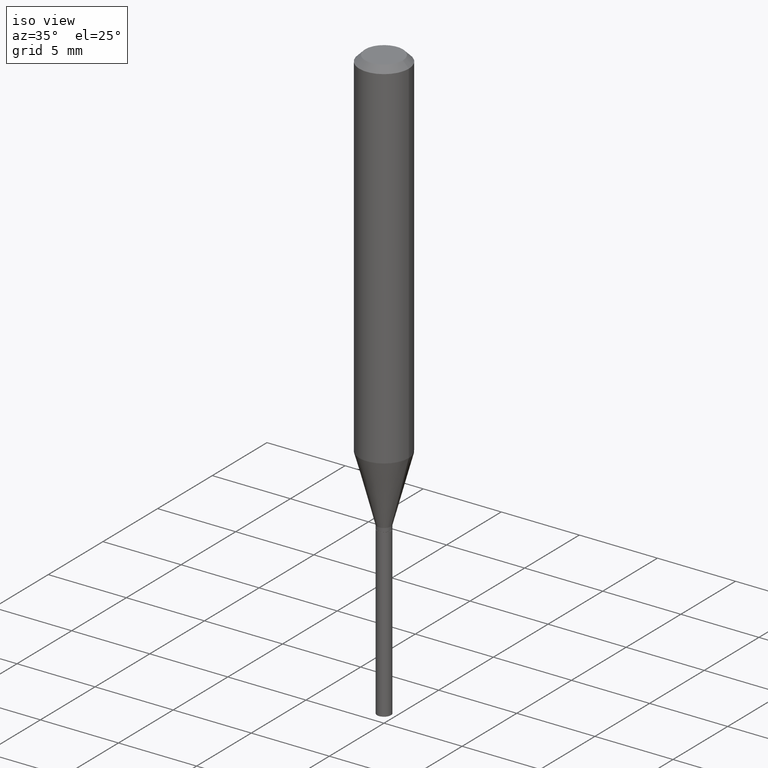
[diagram: clean part render]
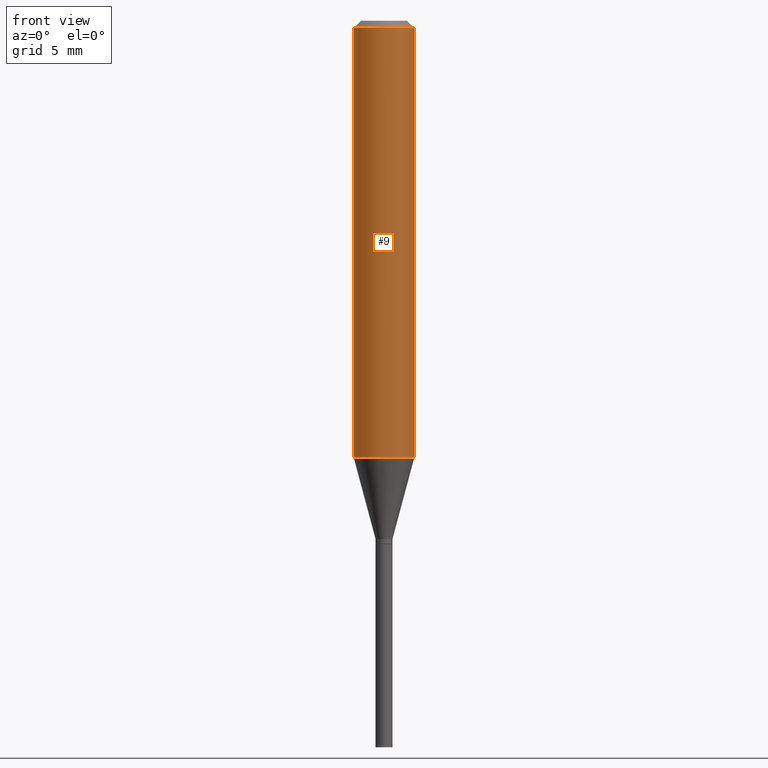
[diagram: tour spotlight — one face highlighted and labeled with its STEP entity id]
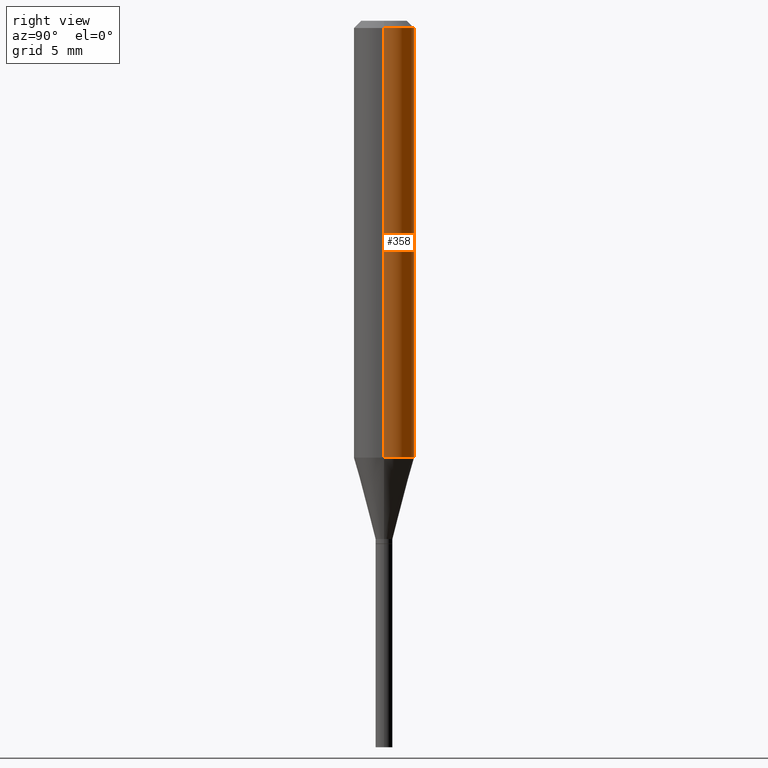
[diagram: tour spotlight — one face highlighted and labeled with its STEP entity id]
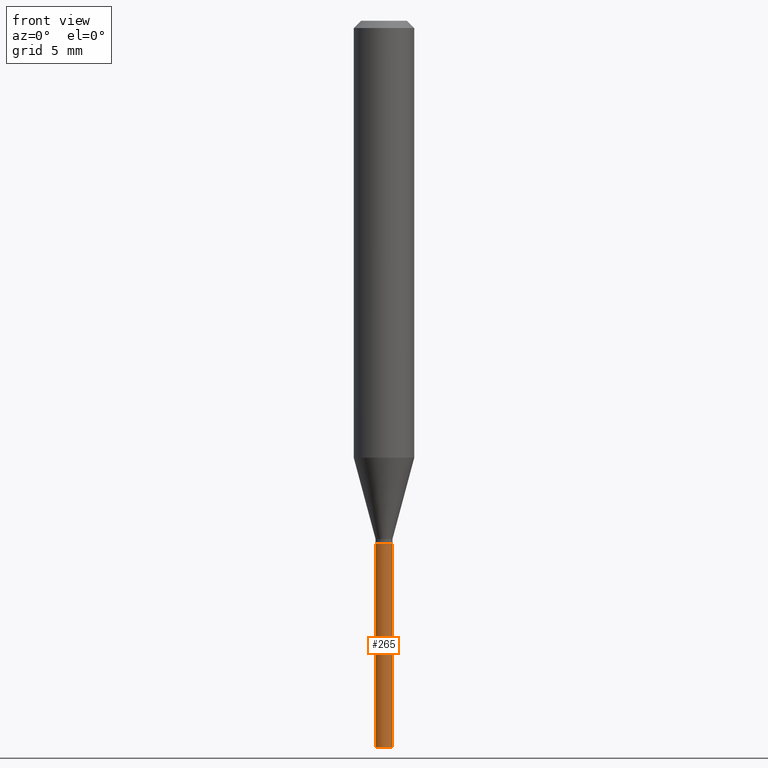
[diagram: tour spotlight — one face highlighted and labeled with its STEP entity id]
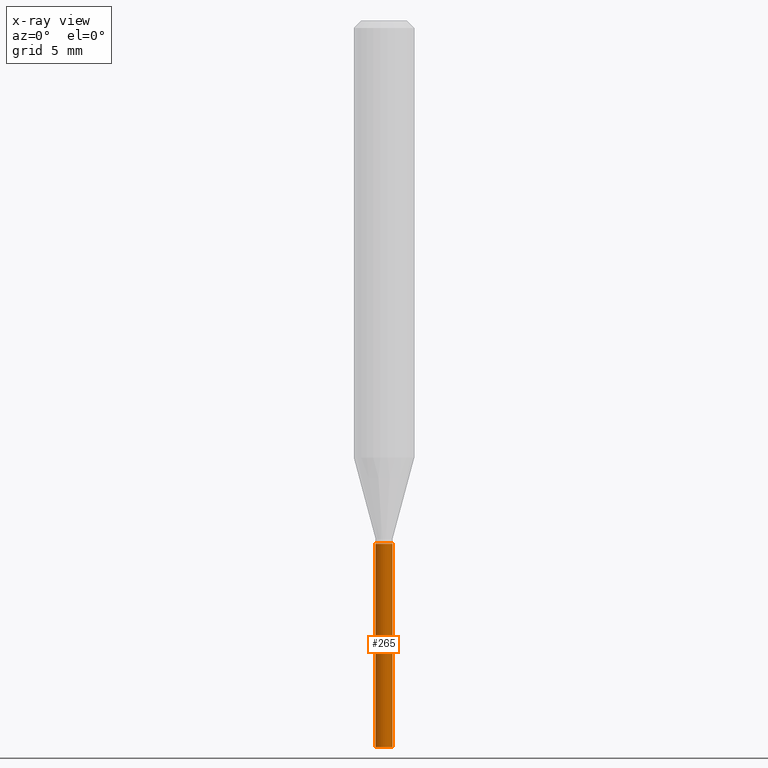
[diagram: x-ray of the same camera — body ghosted, this tour face saturated]
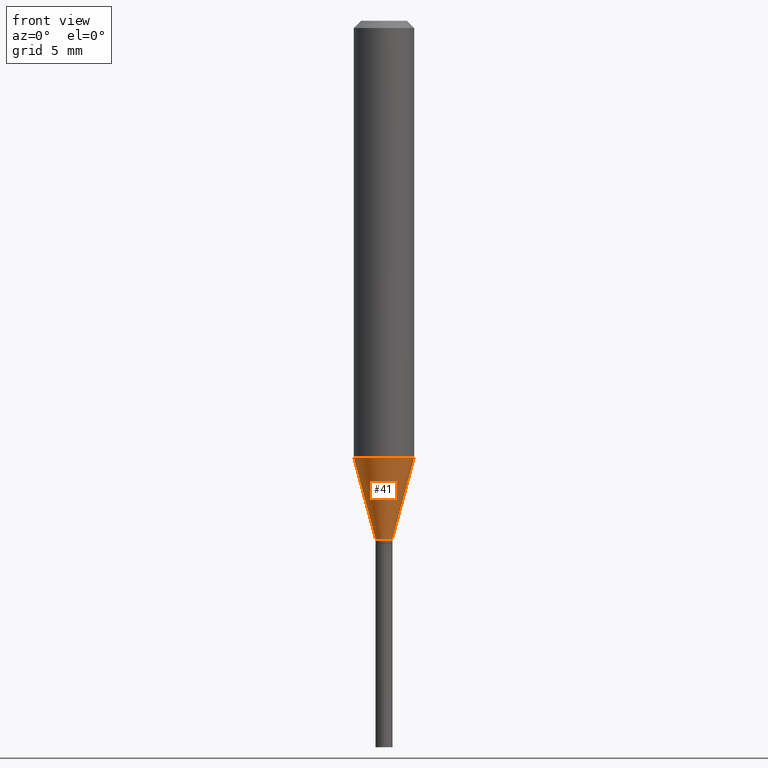
[diagram: tour spotlight — one face highlighted and labeled with its STEP entity id]
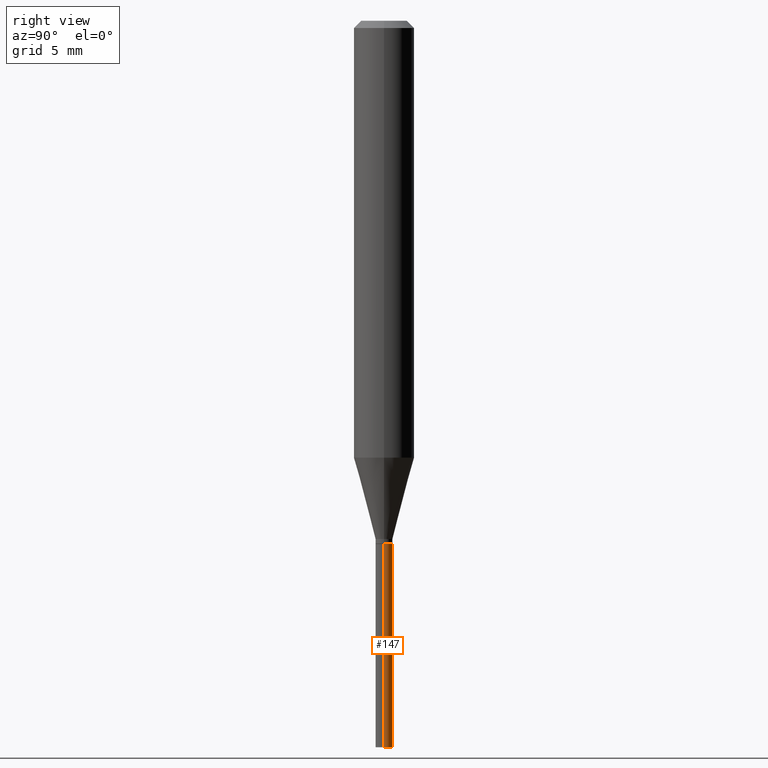
[diagram: tour spotlight — one face highlighted and labeled with its STEP entity id]
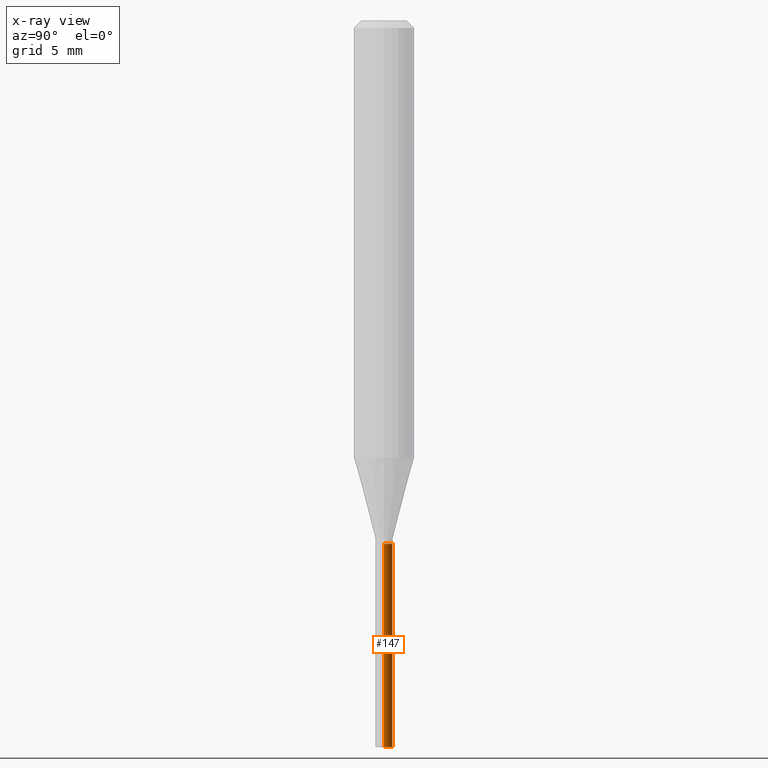
[diagram: x-ray of the same camera — body ghosted, this tour face saturated]
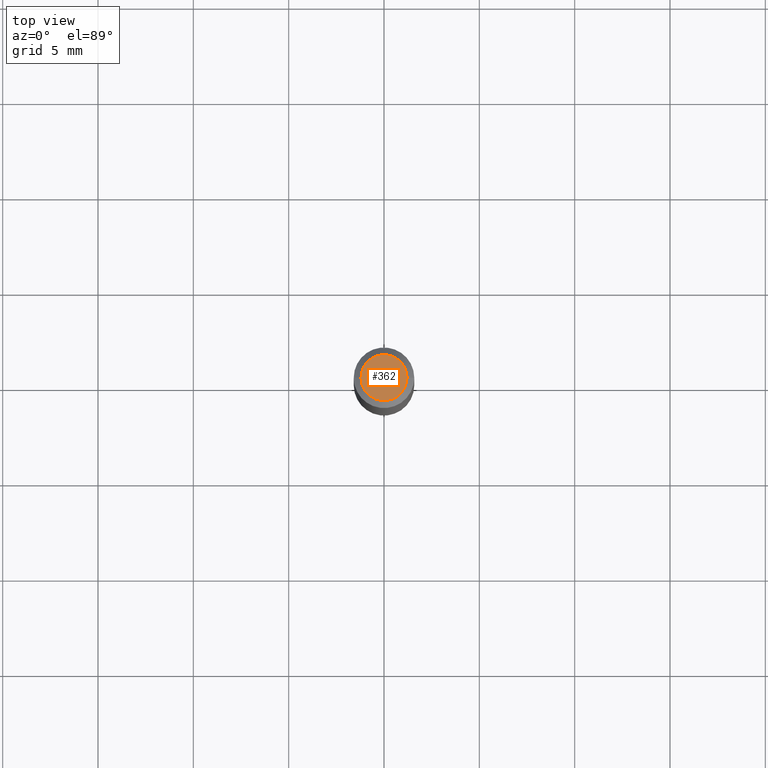
[diagram: tour spotlight — one face highlighted and labeled with its STEP entity id]
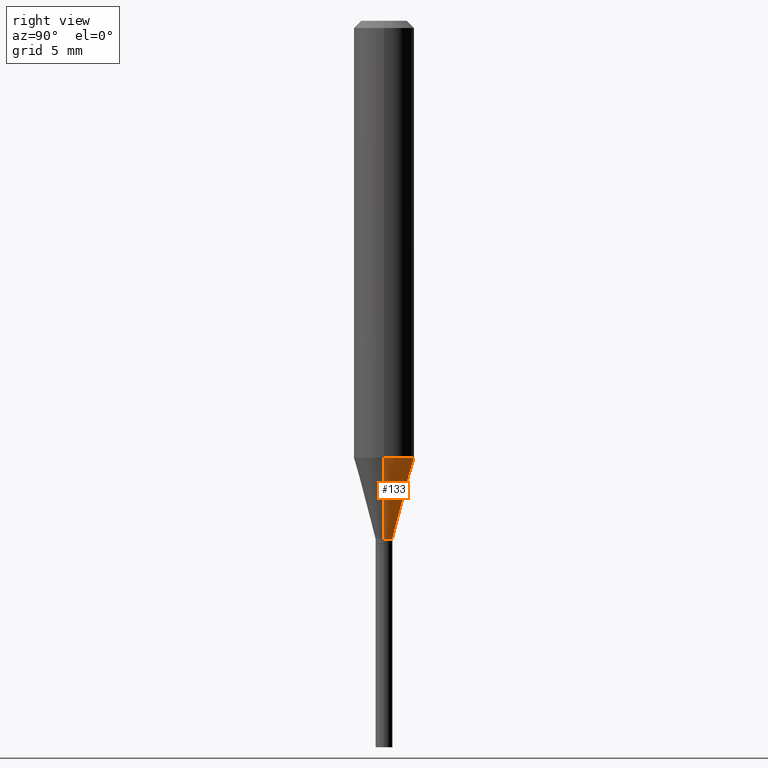
[diagram: tour spotlight — one face highlighted and labeled with its STEP entity id]
A machine part: a face-by-face anatomy tour. The part has 16 B-rep faces; the first image is the clean iso view, then the 7 largest visible faces are spotlighted one at a time (largest first), each with its STEP entity span.

Face 1 — front view, entity #9. In plain terms, the highlighted cylindrical surface (edge-blend (fillet) strip) has radius 1.5875 mm, axis along (-0, 0, 1).
Definition (entity closure, byte-faithful):
#2 = DIRECTION ( 'NONE',  ( 1.000000000000000000, -6.982962677686266711E-15, 0.000000000000000000 ) ) ;
#9 = ADVANCED_FACE ( 'NONE', ( #310 ), #121, .T. ) ;
#32 = DIRECTION ( 'NONE',  ( -2.445468806185136877E-29, 3.491481338843145188E-15, 1.000000000000000000 ) ) ;
#34 = EDGE_CURVE ( 'NONE', #207, #37, #81, .T. ) ;
#37 = VERTEX_POINT ( 'NONE', #432 ) ;
#47 = ORIENTED_EDGE ( 'NONE', *, *, #137, .F. ) ;
#58 = EDGE_CURVE ( 'NONE', #37, #367, #298, .T. ) ;
#59 = CIRCLE ( 'NONE', #321, 0.06250000000000000000 ) ;
#74 = VECTOR ( 'NONE', #32, 39.37007874015748143 ) ;
#81 = CIRCLE ( 'NONE', #347, 0.06250000000000000000 ) ;
#109 = CARTESIAN_POINT ( 'NONE',  ( -0.06250000000000001388, -2.705428463951250195E-15, -0.9020577136594012391 ) ) ;
#121 = CYLINDRICAL_SURFACE ( 'NONE', #410, 0.06250000000000000000 ) ;
#129 = EDGE_LOOP ( 'NONE', ( #47, #407, #171, #198 ) ) ;
#137 = EDGE_CURVE ( 'NONE', #207, #453, #227, .T. ) ;
#171 = ORIENTED_EDGE ( 'NONE', *, *, #58, .T. ) ;
#198 = ORIENTED_EDGE ( 'NONE', *, *, #223, .F. ) ;
#207 = VERTEX_POINT ( 'NONE', #109 ) ;
#223 = EDGE_CURVE ( 'NONE', #453, #367, #59, .T. ) ;
#227 = LINE ( 'NONE', #361, #74 ) ;
#234 = DIRECTION ( 'NONE',  ( -2.445468806185136597E-29, 3.491481338843145583E-15, 1.000000000000000000 ) ) ;
#266 = CARTESIAN_POINT ( 'NONE',  ( 2.205954000132749611E-29, -3.149517673801312812E-15, -0.9020577136594012391 ) ) ;
#298 = LINE ( 'NONE', #396, #456 ) ;
#299 = DIRECTION ( 'NONE',  ( -2.445468806185136877E-29, 3.491481338843145188E-15, 1.000000000000000000 ) ) ;
#310 = FACE_OUTER_BOUND ( 'NONE', #129, .T. ) ;
#321 = AXIS2_PLACEMENT_3D ( 'NONE', #386, #466, #2 ) ;
#347 = AXIS2_PLACEMENT_3D ( 'NONE', #266, #234, #464 ) ;
#361 = CARTESIAN_POINT ( 'NONE',  ( -0.06250000000000000000, 4.440892098500626162E-16, -3.074334431409316114E-30 ) ) ;
#367 = VERTEX_POINT ( 'NONE', #452 ) ;
#375 = DIRECTION ( 'NONE',  ( -2.445468806185136597E-29, 3.491481338843145583E-15, 1.000000000000000000 ) ) ;
#386 = CARTESIAN_POINT ( 'NONE',  ( 3.668203209277705088E-31, -5.237222008264718399E-17, -0.01499999999999999944 ) ) ;
#396 = CARTESIAN_POINT ( 'NONE',  ( 0.06250000000000000000, -4.364351673553916694E-16, 3.047610484872459871E-30 ) ) ;
#407 = ORIENTED_EDGE ( 'NONE', *, *, #34, .T. ) ;
#410 = AXIS2_PLACEMENT_3D ( 'NONE', #449, #375, #414 ) ;
#414 = DIRECTION ( 'NONE',  ( 1.000000000000000000, -6.982962677686266711E-15, 4.876176775795935793E-29 ) ) ;
#432 = CARTESIAN_POINT ( 'NONE',  ( 0.06250000000000001388, -3.585952841156704481E-15, -0.9020577136594012391 ) ) ;
#448 = CARTESIAN_POINT ( 'NONE',  ( -0.06250000000000000000, -1.156855737091917526E-15, -0.01499999999999999944 ) ) ;
#449 = CARTESIAN_POINT ( 'NONE',  ( 0.000000000000000000, 0.000000000000000000, 0.000000000000000000 ) ) ;
#452 = CARTESIAN_POINT ( 'NONE',  ( 0.06250000000000000000, -4.888073874380388472E-16, -0.01499999999999999944 ) ) ;
#453 = VERTEX_POINT ( 'NONE', #448 ) ;
#456 = VECTOR ( 'NONE', #299, 39.37007874015748143 ) ;
#464 = DIRECTION ( 'NONE',  ( 1.000000000000000000, -6.982962677686270655E-15, 0.000000000000000000 ) ) ;
#466 = DIRECTION ( 'NONE',  ( -2.445468806185136597E-29, 3.491481338843145583E-15, 1.000000000000000000 ) ) ;

Face 2 — right view, entity #358. In plain terms, the highlighted cylindrical surface (edge-blend (fillet) strip) has radius 1.5875 mm, axis along (-0, 0, 1).
Definition (entity closure, byte-faithful):
#32 = DIRECTION ( 'NONE',  ( -2.445468806185136877E-29, 3.491481338843145188E-15, 1.000000000000000000 ) ) ;
#37 = VERTEX_POINT ( 'NONE', #432 ) ;
#45 = DIRECTION ( 'NONE',  ( 1.000000000000000000, -6.982962677686266711E-15, 0.000000000000000000 ) ) ;
#48 = CARTESIAN_POINT ( 'NONE',  ( 3.668203209277705088E-31, -5.237222008264718399E-17, -0.01499999999999999944 ) ) ;
#50 = EDGE_LOOP ( 'NONE', ( #297, #61, #342, #244 ) ) ;
#58 = EDGE_CURVE ( 'NONE', #37, #367, #298, .T. ) ;
#61 = ORIENTED_EDGE ( 'NONE', *, *, #137, .T. ) ;
#74 = VECTOR ( 'NONE', #32, 39.37007874015748143 ) ;
#87 = DIRECTION ( 'NONE',  ( 1.000000000000000000, -6.982962677686270655E-15, 0.000000000000000000 ) ) ;
#109 = CARTESIAN_POINT ( 'NONE',  ( -0.06250000000000001388, -2.705428463951250195E-15, -0.9020577136594012391 ) ) ;
#120 = DIRECTION ( 'NONE',  ( -2.445468806185136597E-29, 3.491481338843145583E-15, 1.000000000000000000 ) ) ;
#125 = CIRCLE ( 'NONE', #354, 0.06250000000000000000 ) ;
#135 = DIRECTION ( 'NONE',  ( 1.000000000000000000, -6.982962677686266711E-15, 4.876176775795935793E-29 ) ) ;
#137 = EDGE_CURVE ( 'NONE', #207, #453, #227, .T. ) ;
#148 = AXIS2_PLACEMENT_3D ( 'NONE', #174, #248, #135 ) ;
#174 = CARTESIAN_POINT ( 'NONE',  ( 0.000000000000000000, 0.000000000000000000, 0.000000000000000000 ) ) ;
#181 = CIRCLE ( 'NONE', #196, 0.06250000000000000000 ) ;
#184 = EDGE_CURVE ( 'NONE', #367, #453, #181, .T. ) ;
#190 = EDGE_CURVE ( 'NONE', #37, #207, #125, .T. ) ;
#196 = AXIS2_PLACEMENT_3D ( 'NONE', #48, #120, #45 ) ;
#200 = CARTESIAN_POINT ( 'NONE',  ( 2.205954000132749611E-29, -3.149517673801312812E-15, -0.9020577136594012391 ) ) ;
#207 = VERTEX_POINT ( 'NONE', #109 ) ;
#227 = LINE ( 'NONE', #361, #74 ) ;
#244 = ORIENTED_EDGE ( 'NONE', *, *, #58, .F. ) ;
#246 = FACE_OUTER_BOUND ( 'NONE', #50, .T. ) ;
#248 = DIRECTION ( 'NONE',  ( -2.445468806185136597E-29, 3.491481338843145583E-15, 1.000000000000000000 ) ) ;
#297 = ORIENTED_EDGE ( 'NONE', *, *, #190, .T. ) ;
#298 = LINE ( 'NONE', #396, #456 ) ;
#299 = DIRECTION ( 'NONE',  ( -2.445468806185136877E-29, 3.491481338843145188E-15, 1.000000000000000000 ) ) ;
#342 = ORIENTED_EDGE ( 'NONE', *, *, #184, .F. ) ;
#354 = AXIS2_PLACEMENT_3D ( 'NONE', #200, #443, #87 ) ;
#358 = ADVANCED_FACE ( 'NONE', ( #246 ), #415, .T. ) ;
#361 = CARTESIAN_POINT ( 'NONE',  ( -0.06250000000000000000, 4.440892098500626162E-16, -3.074334431409316114E-30 ) ) ;
#367 = VERTEX_POINT ( 'NONE', #452 ) ;
#396 = CARTESIAN_POINT ( 'NONE',  ( 0.06250000000000000000, -4.364351673553916694E-16, 3.047610484872459871E-30 ) ) ;
#415 = CYLINDRICAL_SURFACE ( 'NONE', #148, 0.06250000000000000000 ) ;
#432 = CARTESIAN_POINT ( 'NONE',  ( 0.06250000000000001388, -3.585952841156704481E-15, -0.9020577136594012391 ) ) ;
#443 = DIRECTION ( 'NONE',  ( -2.445468806185136597E-29, 3.491481338843145583E-15, 1.000000000000000000 ) ) ;
#448 = CARTESIAN_POINT ( 'NONE',  ( -0.06250000000000000000, -1.156855737091917526E-15, -0.01499999999999999944 ) ) ;
#452 = CARTESIAN_POINT ( 'NONE',  ( 0.06250000000000000000, -4.888073874380388472E-16, -0.01499999999999999944 ) ) ;
#453 = VERTEX_POINT ( 'NONE', #448 ) ;
#456 = VECTOR ( 'NONE', #299, 39.37007874015748143 ) ;

Face 3 — front view, entity #265. An x-ray twin of the same camera follows (body ghosted, this face saturated) — the face is partly hidden behind the body. In plain terms, the highlighted cylindrical surface (edge-blend (fillet) strip) has radius 0.4445 mm, axis along (-0, 0, 1).
Definition (entity closure, byte-faithful):
#3 = LINE ( 'NONE', #144, #62 ) ;
#8 = ORIENTED_EDGE ( 'NONE', *, *, #425, .F. ) ;
#30 = DIRECTION ( 'NONE',  ( -2.445468806185136877E-29, 3.491481338843145188E-15, 1.000000000000000000 ) ) ;
#38 = VECTOR ( 'NONE', #259, 39.37007874015748143 ) ;
#40 = ORIENTED_EDGE ( 'NONE', *, *, #64, .T. ) ;
#62 = VECTOR ( 'NONE', #30, 39.37007874015748143 ) ;
#64 = EDGE_CURVE ( 'NONE', #313, #95, #3, .T. ) ;
#75 = CARTESIAN_POINT ( 'NONE',  ( -0.01750000000000000167, -4.379665948349641030E-15, -1.080000000000000293 ) ) ;
#76 = CIRCLE ( 'NONE', #455, 0.01750000000000000167 ) ;
#77 = LINE ( 'NONE', #79, #38 ) ;
#79 = CARTESIAN_POINT ( 'NONE',  ( -0.01750000000000000167, 1.243449787580175444E-16, -8.608136407946085539E-31 ) ) ;
#95 = VERTEX_POINT ( 'NONE', #294 ) ;
#97 = EDGE_CURVE ( 'NONE', #127, #235, #77, .T. ) ;
#127 = VERTEX_POINT ( 'NONE', #185 ) ;
#131 = DIRECTION ( 'NONE',  ( -2.445468806185136597E-29, 3.491481338843145583E-15, 1.000000000000000000 ) ) ;
#143 = CYLINDRICAL_SURFACE ( 'NONE', #329, 0.01750000000000000167 ) ;
#144 = CARTESIAN_POINT ( 'NONE',  ( 0.01750000000000000167, -1.222018468595096625E-16, 8.533309357642889039E-31 ) ) ;
#156 = DIRECTION ( 'NONE',  ( -2.445468806185136597E-29, 3.491481338843145583E-15, 1.000000000000000000 ) ) ;
#185 = CARTESIAN_POINT ( 'NONE',  ( -0.01750000000000000167, -4.379665948349641030E-15, -1.500000000000000222 ) ) ;
#202 = DIRECTION ( 'NONE',  ( 1.000000000000000000, -6.982962677686265922E-15, 4.876176775795936353E-29 ) ) ;
#209 = DIRECTION ( 'NONE',  ( -2.445468806185136597E-29, 3.491481338843145583E-15, 1.000000000000000000 ) ) ;
#235 = VERTEX_POINT ( 'NONE', #75 ) ;
#259 = DIRECTION ( 'NONE',  ( -2.445468806185136877E-29, 3.491481338843145188E-15, 1.000000000000000000 ) ) ;
#265 = ADVANCED_FACE ( 'NONE', ( #463 ), #143, .T. ) ;
#275 = CIRCLE ( 'NONE', #348, 0.01750000000000000167 ) ;
#276 = ORIENTED_EDGE ( 'NONE', *, *, #97, .F. ) ;
#277 = CARTESIAN_POINT ( 'NONE',  ( 2.641106310679947838E-29, -3.770799845950597592E-15, -1.080000000000000293 ) ) ;
#284 = CARTESIAN_POINT ( 'NONE',  ( 3.668203209277704895E-29, -5.237222008264718177E-15, -1.500000000000000222 ) ) ;
#294 = CARTESIAN_POINT ( 'NONE',  ( 0.01750000000000000167, -3.893001692810107575E-15, -1.080000000000000293 ) ) ;
#313 = VERTEX_POINT ( 'NONE', #340 ) ;
#329 = AXIS2_PLACEMENT_3D ( 'NONE', #365, #156, #202 ) ;
#333 = EDGE_LOOP ( 'NONE', ( #276, #409, #40, #8 ) ) ;
#340 = CARTESIAN_POINT ( 'NONE',  ( 0.01750000000000000167, -5.359423855124228160E-15, -1.500000000000000222 ) ) ;
#348 = AXIS2_PLACEMENT_3D ( 'NONE', #284, #131, #379 ) ;
#365 = CARTESIAN_POINT ( 'NONE',  ( 0.000000000000000000, 0.000000000000000000, 0.000000000000000000 ) ) ;
#379 = DIRECTION ( 'NONE',  ( 1.000000000000000000, -6.982962677686248567E-15, 0.000000000000000000 ) ) ;
#389 = EDGE_CURVE ( 'NONE', #127, #313, #275, .T. ) ;
#409 = ORIENTED_EDGE ( 'NONE', *, *, #389, .T. ) ;
#416 = DIRECTION ( 'NONE',  ( 1.000000000000000000, -6.982962677686276966E-15, 0.000000000000000000 ) ) ;
#425 = EDGE_CURVE ( 'NONE', #235, #95, #76, .T. ) ;
#455 = AXIS2_PLACEMENT_3D ( 'NONE', #277, #209, #416 ) ;
#463 = FACE_OUTER_BOUND ( 'NONE', #333, .T. ) ;

Face 4 — front view, entity #41. In plain terms, the highlighted conical surface has half-angle 15 deg.
Definition (entity closure, byte-faithful):
#16 = VERTEX_POINT ( 'NONE', #166 ) ;
#34 = EDGE_CURVE ( 'NONE', #207, #37, #81, .T. ) ;
#37 = VERTEX_POINT ( 'NONE', #432 ) ;
#39 = DIRECTION ( 'NONE',  ( 1.000000000000000000, -6.982962677686253300E-15, 0.000000000000000000 ) ) ;
#41 = ADVANCED_FACE ( 'NONE', ( #359 ), #175, .T. ) ;
#54 = ORIENTED_EDGE ( 'NONE', *, *, #440, .T. ) ;
#63 = DIRECTION ( 'NONE',  ( 0.2588190451025213501, 1.565188264969621968E-15, 0.9659258262890682012 ) ) ;
#81 = CIRCLE ( 'NONE', #347, 0.06250000000000000000 ) ;
#89 = DIRECTION ( 'NONE',  ( -0.2588190451025213501, 5.211531920934551042E-15, 0.9659258262890682012 ) ) ;
#109 = CARTESIAN_POINT ( 'NONE',  ( -0.06250000000000001388, -2.705428463951250195E-15, -0.9020577136594012391 ) ) ;
#115 = CARTESIAN_POINT ( 'NONE',  ( 2.616651622618096293E-29, -3.735885032562165943E-15, -1.070000000000000062 ) ) ;
#118 = AXIS2_PLACEMENT_3D ( 'NONE', #301, #305, #39 ) ;
#139 = VECTOR ( 'NONE', #63, 39.37007874015747433 ) ;
#161 = LINE ( 'NONE', #309, #428 ) ;
#166 = CARTESIAN_POINT ( 'NONE',  ( -0.01750000000000006065, -3.158484258877699445E-15, -1.070000000000000062 ) ) ;
#168 = LINE ( 'NONE', #381, #139 ) ;
#175 = CONICAL_SURFACE ( 'NONE', #191, 0.01750000000000006065, 0.2617993877991500740 ) ;
#191 = AXIS2_PLACEMENT_3D ( 'NONE', #115, #356, #324 ) ;
#207 = VERTEX_POINT ( 'NONE', #109 ) ;
#234 = DIRECTION ( 'NONE',  ( -2.445468806185136597E-29, 3.491481338843145583E-15, 1.000000000000000000 ) ) ;
#237 = VERTEX_POINT ( 'NONE', #331 ) ;
#266 = CARTESIAN_POINT ( 'NONE',  ( 2.205954000132749611E-29, -3.149517673801312812E-15, -0.9020577136594012391 ) ) ;
#282 = EDGE_CURVE ( 'NONE', #16, #237, #397, .T. ) ;
#301 = CARTESIAN_POINT ( 'NONE',  ( 2.616651622618096293E-29, -3.735885032562165943E-15, -1.070000000000000062 ) ) ;
#302 = EDGE_LOOP ( 'NONE', ( #437, #338, #54, #320 ) ) ;
#305 = DIRECTION ( 'NONE',  ( -2.445468806185136597E-29, 3.491481338843145583E-15, 1.000000000000000000 ) ) ;
#309 = CARTESIAN_POINT ( 'NONE',  ( -0.01750000000000006065, -3.611540053804147906E-15, -1.070000000000000062 ) ) ;
#320 = ORIENTED_EDGE ( 'NONE', *, *, #34, .F. ) ;
#324 = DIRECTION ( 'NONE',  ( 1.000000000000000000, -6.982962677686253300E-15, 0.000000000000000000 ) ) ;
#331 = CARTESIAN_POINT ( 'NONE',  ( 0.01750000000000006065, -3.858086879421675926E-15, -1.070000000000000062 ) ) ;
#332 = EDGE_CURVE ( 'NONE', #16, #207, #161, .T. ) ;
#338 = ORIENTED_EDGE ( 'NONE', *, *, #282, .T. ) ;
#347 = AXIS2_PLACEMENT_3D ( 'NONE', #266, #234, #464 ) ;
#356 = DIRECTION ( 'NONE',  ( -2.445468806185136597E-29, 3.491481338843145583E-15, 1.000000000000000000 ) ) ;
#359 = FACE_OUTER_BOUND ( 'NONE', #302, .T. ) ;
#381 = CARTESIAN_POINT ( 'NONE',  ( 0.01750000000000006065, -3.858086879421675926E-15, -1.070000000000000062 ) ) ;
#397 = CIRCLE ( 'NONE', #118, 0.01750000000000006065 ) ;
#428 = VECTOR ( 'NONE', #89, 39.37007874015747433 ) ;
#432 = CARTESIAN_POINT ( 'NONE',  ( 0.06250000000000001388, -3.585952841156704481E-15, -0.9020577136594012391 ) ) ;
#437 = ORIENTED_EDGE ( 'NONE', *, *, #332, .F. ) ;
#440 = EDGE_CURVE ( 'NONE', #237, #37, #168, .T. ) ;
#464 = DIRECTION ( 'NONE',  ( 1.000000000000000000, -6.982962677686270655E-15, 0.000000000000000000 ) ) ;

Face 5 — right view, entity #147. An x-ray twin of the same camera follows (body ghosted, this face saturated) — the face is partly hidden behind the body. In plain terms, the highlighted cylindrical surface (edge-blend (fillet) strip) has radius 0.4445 mm, axis along (-0, 0, 1).
Definition (entity closure, byte-faithful):
#3 = LINE ( 'NONE', #144, #62 ) ;
#14 = EDGE_CURVE ( 'NONE', #95, #235, #179, .T. ) ;
#30 = DIRECTION ( 'NONE',  ( -2.445468806185136877E-29, 3.491481338843145188E-15, 1.000000000000000000 ) ) ;
#38 = VECTOR ( 'NONE', #259, 39.37007874015748143 ) ;
#46 = ORIENTED_EDGE ( 'NONE', *, *, #431, .T. ) ;
#62 = VECTOR ( 'NONE', #30, 39.37007874015748143 ) ;
#64 = EDGE_CURVE ( 'NONE', #313, #95, #3, .T. ) ;
#75 = CARTESIAN_POINT ( 'NONE',  ( -0.01750000000000000167, -4.379665948349641030E-15, -1.080000000000000293 ) ) ;
#77 = LINE ( 'NONE', #79, #38 ) ;
#79 = CARTESIAN_POINT ( 'NONE',  ( -0.01750000000000000167, 1.243449787580175444E-16, -8.608136407946085539E-31 ) ) ;
#91 = DIRECTION ( 'NONE',  ( 1.000000000000000000, -6.982962677686248567E-15, 0.000000000000000000 ) ) ;
#95 = VERTEX_POINT ( 'NONE', #294 ) ;
#97 = EDGE_CURVE ( 'NONE', #127, #235, #77, .T. ) ;
#122 = AXIS2_PLACEMENT_3D ( 'NONE', #303, #336, #401 ) ;
#127 = VERTEX_POINT ( 'NONE', #185 ) ;
#144 = CARTESIAN_POINT ( 'NONE',  ( 0.01750000000000000167, -1.222018468595096625E-16, 8.533309357642889039E-31 ) ) ;
#147 = ADVANCED_FACE ( 'NONE', ( #450 ), #153, .T. ) ;
#153 = CYLINDRICAL_SURFACE ( 'NONE', #122, 0.01750000000000000167 ) ;
#162 = EDGE_LOOP ( 'NONE', ( #46, #400, #210, #368 ) ) ;
#176 = CARTESIAN_POINT ( 'NONE',  ( 3.668203209277704895E-29, -5.237222008264718177E-15, -1.500000000000000222 ) ) ;
#179 = CIRCLE ( 'NONE', #180, 0.01750000000000000167 ) ;
#180 = AXIS2_PLACEMENT_3D ( 'NONE', #273, #378, #204 ) ;
#185 = CARTESIAN_POINT ( 'NONE',  ( -0.01750000000000000167, -4.379665948349641030E-15, -1.500000000000000222 ) ) ;
#189 = AXIS2_PLACEMENT_3D ( 'NONE', #176, #454, #91 ) ;
#204 = DIRECTION ( 'NONE',  ( 1.000000000000000000, -6.982962677686276966E-15, 0.000000000000000000 ) ) ;
#210 = ORIENTED_EDGE ( 'NONE', *, *, #14, .F. ) ;
#235 = VERTEX_POINT ( 'NONE', #75 ) ;
#259 = DIRECTION ( 'NONE',  ( -2.445468806185136877E-29, 3.491481338843145188E-15, 1.000000000000000000 ) ) ;
#273 = CARTESIAN_POINT ( 'NONE',  ( 2.641106310679947838E-29, -3.770799845950597592E-15, -1.080000000000000293 ) ) ;
#294 = CARTESIAN_POINT ( 'NONE',  ( 0.01750000000000000167, -3.893001692810107575E-15, -1.080000000000000293 ) ) ;
#303 = CARTESIAN_POINT ( 'NONE',  ( 0.000000000000000000, 0.000000000000000000, 0.000000000000000000 ) ) ;
#308 = CIRCLE ( 'NONE', #189, 0.01750000000000000167 ) ;
#313 = VERTEX_POINT ( 'NONE', #340 ) ;
#336 = DIRECTION ( 'NONE',  ( -2.445468806185136597E-29, 3.491481338843145583E-15, 1.000000000000000000 ) ) ;
#340 = CARTESIAN_POINT ( 'NONE',  ( 0.01750000000000000167, -5.359423855124228160E-15, -1.500000000000000222 ) ) ;
#368 = ORIENTED_EDGE ( 'NONE', *, *, #64, .F. ) ;
#378 = DIRECTION ( 'NONE',  ( -2.445468806185136597E-29, 3.491481338843145583E-15, 1.000000000000000000 ) ) ;
#400 = ORIENTED_EDGE ( 'NONE', *, *, #97, .T. ) ;
#401 = DIRECTION ( 'NONE',  ( 1.000000000000000000, -6.982962677686265922E-15, 4.876176775795936353E-29 ) ) ;
#431 = EDGE_CURVE ( 'NONE', #313, #127, #308, .T. ) ;
#450 = FACE_OUTER_BOUND ( 'NONE', #162, .T. ) ;
#454 = DIRECTION ( 'NONE',  ( -2.445468806185136597E-29, 3.491481338843145583E-15, 1.000000000000000000 ) ) ;

Face 6 — top view, entity #362. In plain terms, the highlighted planar face has unit normal (0, -0, -1).
Definition (entity closure, byte-faithful):
#15 = CARTESIAN_POINT ( 'NONE',  ( 1.145470065593040868E-44, -1.635427672643458845E-30, -4.684051019975766066E-16 ) ) ;
#17 = CARTESIAN_POINT ( 'NONE',  ( 3.316907271900976096E-16, 0.04749999999999999362, -4.000479145938377490E-16 ) ) ;
#33 = AXIS2_PLACEMENT_3D ( 'NONE', #316, #217, #214 ) ;
#92 = VERTEX_POINT ( 'NONE', #330 ) ;
#138 = FACE_OUTER_BOUND ( 'NONE', #306, .T. ) ;
#192 = ORIENTED_EDGE ( 'NONE', *, *, #271, .T. ) ;
#194 = DIRECTION ( 'NONE',  ( 1.000000000000000000, -6.982962677686267499E-15, 4.852736867747366768E-29 ) ) ;
#211 = CARTESIAN_POINT ( 'NONE',  ( 0.04749999999999999362, -4.035134999187586019E-16, -4.684051019975741414E-16 ) ) ;
#213 = CIRCLE ( 'NONE', #343, 0.04749999999999999362 ) ;
#214 = DIRECTION ( 'NONE',  ( 1.000000000000000000, -6.982962677686267499E-15, 4.852736867747366768E-29 ) ) ;
#217 = DIRECTION ( 'NONE',  ( -2.445468806185136597E-29, 3.491481338843145583E-15, 1.000000000000000000 ) ) ;
#251 = DIRECTION ( 'NONE',  ( -1.000000000000000000, 6.982962677686265922E-15, -4.876176775795935793E-29 ) ) ;
#271 = EDGE_CURVE ( 'NONE', #92, #337, #213, .T. ) ;
#306 = EDGE_LOOP ( 'NONE', ( #192, #399 ) ) ;
#314 = AXIS2_PLACEMENT_3D ( 'NONE', #17, #376, #251 ) ;
#316 = CARTESIAN_POINT ( 'NONE',  ( 1.145470065593040868E-44, -1.635427672643458845E-30, -4.684051019975766066E-16 ) ) ;
#330 = CARTESIAN_POINT ( 'NONE',  ( -0.04749999999999999362, 3.578768372314202617E-16, -4.684051019975790718E-16 ) ) ;
#337 = VERTEX_POINT ( 'NONE', #211 ) ;
#343 = AXIS2_PLACEMENT_3D ( 'NONE', #15, #406, #194 ) ;
#349 = PLANE ( 'NONE',  #314 ) ;
#362 = ADVANCED_FACE ( 'NONE', ( #138 ), #349, .F. ) ;
#376 = DIRECTION ( 'NONE',  ( 2.438088387897960049E-29, -3.491481338843145188E-15, -1.000000000000000000 ) ) ;
#399 = ORIENTED_EDGE ( 'NONE', *, *, #403, .T. ) ;
#403 = EDGE_CURVE ( 'NONE', #337, #92, #436, .T. ) ;
#406 = DIRECTION ( 'NONE',  ( -2.445468806185136597E-29, 3.491481338843145583E-15, 1.000000000000000000 ) ) ;
#436 = CIRCLE ( 'NONE', #33, 0.04749999999999999362 ) ;

Face 7 — right view, entity #133. In plain terms, the highlighted conical surface has half-angle 15 deg.
Definition (entity closure, byte-faithful):
#5 = DIRECTION ( 'NONE',  ( -2.445468806185136597E-29, 3.491481338843145583E-15, 1.000000000000000000 ) ) ;
#16 = VERTEX_POINT ( 'NONE', #166 ) ;
#22 = ORIENTED_EDGE ( 'NONE', *, *, #190, .F. ) ;
#25 = CARTESIAN_POINT ( 'NONE',  ( 2.616651622618096293E-29, -3.735885032562165943E-15, -1.070000000000000062 ) ) ;
#37 = VERTEX_POINT ( 'NONE', #432 ) ;
#44 = ORIENTED_EDGE ( 'NONE', *, *, #339, .T. ) ;
#51 = AXIS2_PLACEMENT_3D ( 'NONE', #261, #5, #73 ) ;
#63 = DIRECTION ( 'NONE',  ( 0.2588190451025213501, 1.565188264969621968E-15, 0.9659258262890682012 ) ) ;
#73 = DIRECTION ( 'NONE',  ( 1.000000000000000000, -6.982962677686253300E-15, 0.000000000000000000 ) ) ;
#86 = EDGE_LOOP ( 'NONE', ( #44, #405, #22, #203 ) ) ;
#87 = DIRECTION ( 'NONE',  ( 1.000000000000000000, -6.982962677686270655E-15, 0.000000000000000000 ) ) ;
#89 = DIRECTION ( 'NONE',  ( -0.2588190451025213501, 5.211531920934551042E-15, 0.9659258262890682012 ) ) ;
#98 = DIRECTION ( 'NONE',  ( -2.445468806185136597E-29, 3.491481338843145583E-15, 1.000000000000000000 ) ) ;
#109 = CARTESIAN_POINT ( 'NONE',  ( -0.06250000000000001388, -2.705428463951250195E-15, -0.9020577136594012391 ) ) ;
#125 = CIRCLE ( 'NONE', #354, 0.06250000000000000000 ) ;
#133 = ADVANCED_FACE ( 'NONE', ( #327 ), #360, .T. ) ;
#134 = AXIS2_PLACEMENT_3D ( 'NONE', #25, #98, #457 ) ;
#139 = VECTOR ( 'NONE', #63, 39.37007874015747433 ) ;
#161 = LINE ( 'NONE', #309, #428 ) ;
#163 = CIRCLE ( 'NONE', #134, 0.01750000000000006065 ) ;
#166 = CARTESIAN_POINT ( 'NONE',  ( -0.01750000000000006065, -3.158484258877699445E-15, -1.070000000000000062 ) ) ;
#168 = LINE ( 'NONE', #381, #139 ) ;
#190 = EDGE_CURVE ( 'NONE', #37, #207, #125, .T. ) ;
#200 = CARTESIAN_POINT ( 'NONE',  ( 2.205954000132749611E-29, -3.149517673801312812E-15, -0.9020577136594012391 ) ) ;
#203 = ORIENTED_EDGE ( 'NONE', *, *, #440, .F. ) ;
#207 = VERTEX_POINT ( 'NONE', #109 ) ;
#237 = VERTEX_POINT ( 'NONE', #331 ) ;
#261 = CARTESIAN_POINT ( 'NONE',  ( 2.616651622618096293E-29, -3.735885032562165943E-15, -1.070000000000000062 ) ) ;
#309 = CARTESIAN_POINT ( 'NONE',  ( -0.01750000000000006065, -3.611540053804147906E-15, -1.070000000000000062 ) ) ;
#327 = FACE_OUTER_BOUND ( 'NONE', #86, .T. ) ;
#331 = CARTESIAN_POINT ( 'NONE',  ( 0.01750000000000006065, -3.858086879421675926E-15, -1.070000000000000062 ) ) ;
#332 = EDGE_CURVE ( 'NONE', #16, #207, #161, .T. ) ;
#339 = EDGE_CURVE ( 'NONE', #237, #16, #163, .T. ) ;
#354 = AXIS2_PLACEMENT_3D ( 'NONE', #200, #443, #87 ) ;
#360 = CONICAL_SURFACE ( 'NONE', #51, 0.01750000000000006065, 0.2617993877991500740 ) ;
#381 = CARTESIAN_POINT ( 'NONE',  ( 0.01750000000000006065, -3.858086879421675926E-15, -1.070000000000000062 ) ) ;
#405 = ORIENTED_EDGE ( 'NONE', *, *, #332, .T. ) ;
#428 = VECTOR ( 'NONE', #89, 39.37007874015747433 ) ;
#432 = CARTESIAN_POINT ( 'NONE',  ( 0.06250000000000001388, -3.585952841156704481E-15, -0.9020577136594012391 ) ) ;
#440 = EDGE_CURVE ( 'NONE', #237, #37, #168, .T. ) ;
#443 = DIRECTION ( 'NONE',  ( -2.445468806185136597E-29, 3.491481338843145583E-15, 1.000000000000000000 ) ) ;
#457 = DIRECTION ( 'NONE',  ( 1.000000000000000000, -6.982962677686253300E-15, 0.000000000000000000 ) ) ;